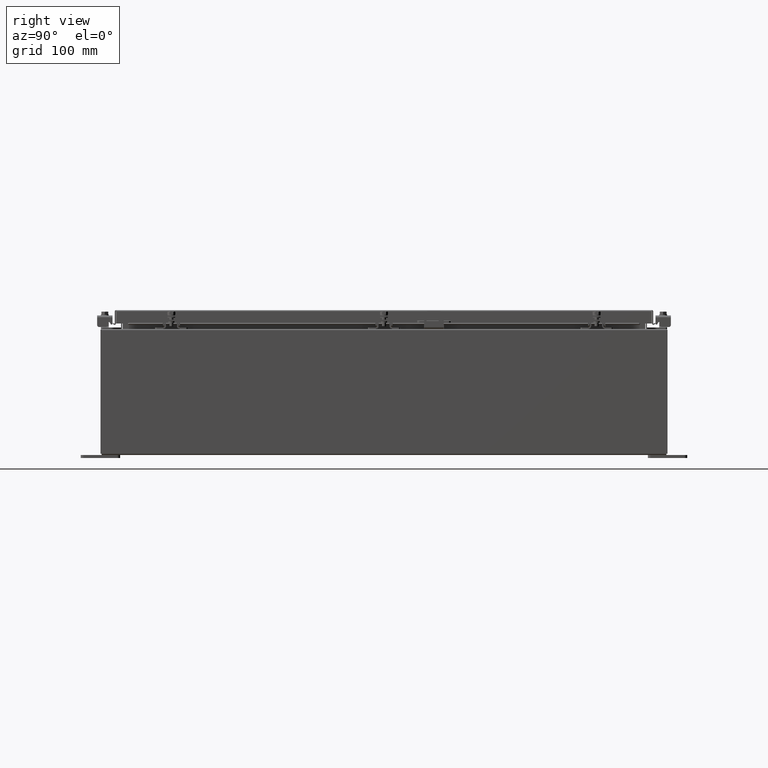
[diagram: clean part render]
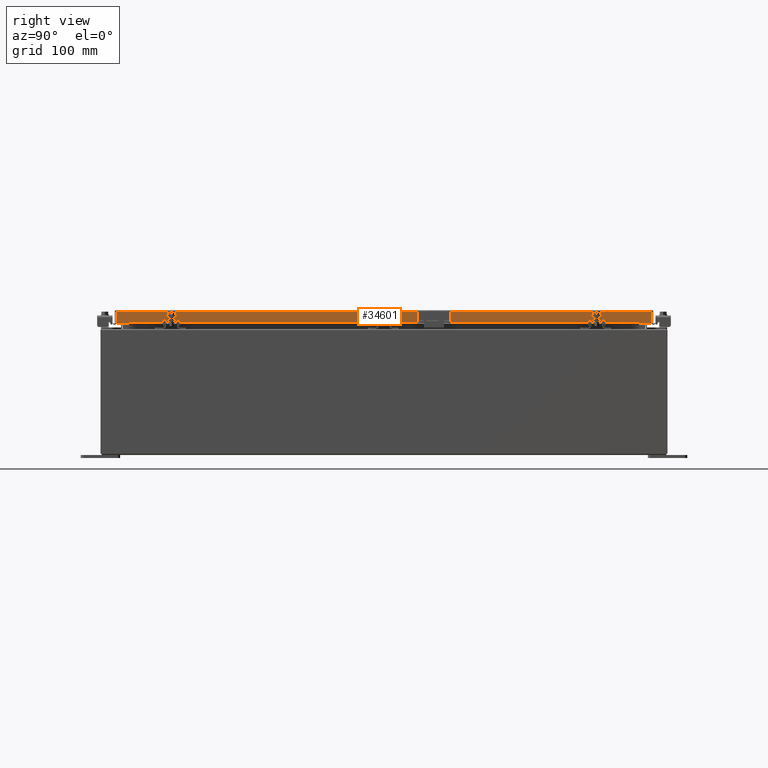
[diagram: same view with one face highlighted and labeled with its STEP entity id]
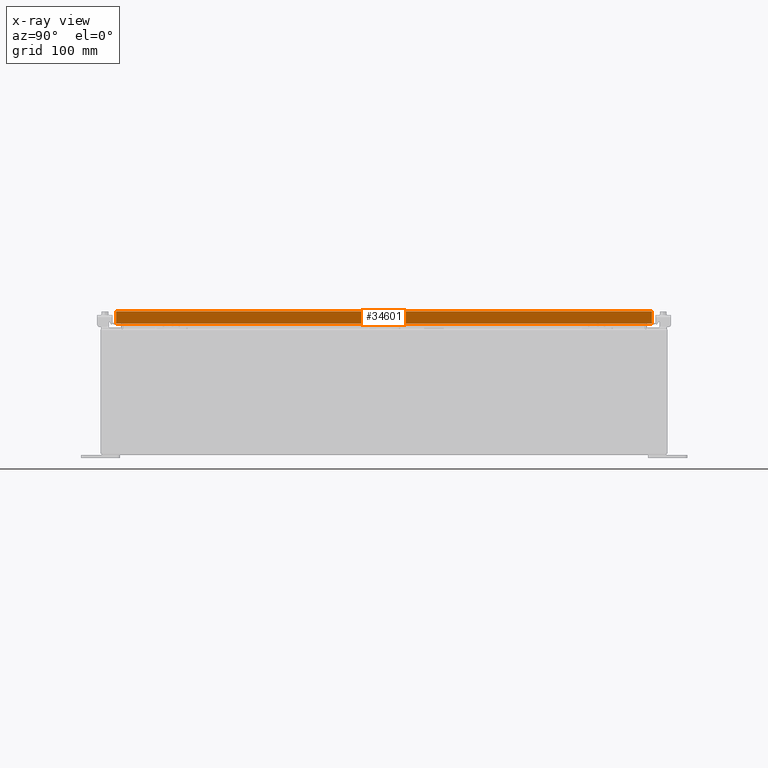
[diagram: x-ray of the same camera — body ghosted, the highlighted face saturated]
A machine part, right view. The second image highlights one B-rep face of the part: STEP entity #34601.
The next image is the same camera in x-ray: the body ghosted, the highlighted face saturated — about 0% of this face is hidden behind the body in this view.
In plain terms, the highlighted planar face has unit normal (1, 0, 0).
Its self-contained STEP definition (entity closure, byte-faithful):
#553 = DIRECTION ( 'NONE',  ( 2.818880942772360100E-015, 0.0000000000000000000, -1.000000000000000000 ) ) ;
#1302 = LINE ( 'NONE', #27142, #33855 ) ;
#2175 = CARTESIAN_POINT ( 'NONE',  ( 11.07799999999999800, 17.00515786437628000, -0.8499999999999996400 ) ) ;
#3017 = ORIENTED_EDGE ( 'NONE', *, *, #36706, .F. ) ;
#3088 = EDGE_LOOP ( 'NONE', ( #3017, #41963, #11924, #37912, #36174, #11191 ) ) ;
#3940 = EDGE_CURVE ( 'NONE', #24864, #25596, #1302, .T. ) ;
#6904 = PLANE ( 'NONE',  #12127 ) ;
#7496 = VECTOR ( 'NONE', #35919, 39.37007874015748100 ) ;
#9224 = VERTEX_POINT ( 'NONE', #9693 ) ;
#9693 = CARTESIAN_POINT ( 'NONE',  ( 11.07799999999998900, -16.25515786437626200, -0.8500000000000016400 ) ) ;
#9966 = CARTESIAN_POINT ( 'NONE',  ( 11.07799999999999800, -17.09399999999999800, -0.8499999999999996400 ) ) ;
#10571 = CARTESIAN_POINT ( 'NONE',  ( 11.07799999999999600, 0.0000000000000000000, -0.08770000000000007000 ) ) ;
#10998 = FACE_OUTER_BOUND ( 'NONE', #3088, .T. ) ;
#11191 = ORIENTED_EDGE ( 'NONE', *, *, #17916, .T. ) ;
#11574 = VERTEX_POINT ( 'NONE', #33624 ) ;
#11924 = ORIENTED_EDGE ( 'NONE', *, *, #16301, .F. ) ;
#12127 = AXIS2_PLACEMENT_3D ( 'NONE', #26419, #20048, #553 ) ;
#15161 = LINE ( 'NONE', #9966, #7496 ) ;
#15877 = DIRECTION ( 'NONE',  ( -2.818880942772360500E-015, -6.982962677686269100E-015, 1.000000000000000000 ) ) ;
#16087 = CARTESIAN_POINT ( 'NONE',  ( 11.07799999999999800, -17.00515786437626200, -0.8499999999999996400 ) ) ;
#16301 = EDGE_CURVE ( 'NONE', #33108, #9224, #35199, .T. ) ;
#17916 = EDGE_CURVE ( 'NONE', #25596, #11574, #41222, .T. ) ;
#18035 = CARTESIAN_POINT ( 'NONE',  ( 11.07799999999999800, -17.09399999999999800, -0.8499999999999996400 ) ) ;
#20048 = DIRECTION ( 'NONE',  ( 1.000000000000000000, 0.0000000000000000000, 2.818880942772360100E-015 ) ) ;
#21448 = DIRECTION ( 'NONE',  ( 0.0000000000000000000, -1.000000000000000000, 0.0000000000000000000 ) ) ;
#23647 = EDGE_CURVE ( 'NONE', #9224, #40629, #29258, .T. ) ;
#24134 = VECTOR ( 'NONE', #15877, 39.37007874015748100 ) ;
#24864 = VERTEX_POINT ( 'NONE', #2175 ) ;
#25596 = VERTEX_POINT ( 'NONE', #40839 ) ;
#26419 = CARTESIAN_POINT ( 'NONE',  ( 11.07799999999999600, 0.0000000000000000000, 3.148837674004377800E-014 ) ) ;
#26840 = DIRECTION ( 'NONE',  ( 0.0000000000000000000, -1.000000000000000000, 0.0000000000000000000 ) ) ;
#27142 = CARTESIAN_POINT ( 'NONE',  ( 11.07799999999999600, 17.00515786437627600, 1.502347594351464400E-013 ) ) ;
#27475 = VECTOR ( 'NONE', #26840, 39.37007874015748100 ) ;
#29258 = LINE ( 'NONE', #18035, #30313 ) ;
#30313 = VECTOR ( 'NONE', #40804, 39.37007874015748100 ) ;
#31494 = EDGE_CURVE ( 'NONE', #24864, #33108, #15161, .T. ) ;
#33108 = VERTEX_POINT ( 'NONE', #35787 ) ;
#33624 = CARTESIAN_POINT ( 'NONE',  ( 11.07799999999999600, -17.00515786437626500, -0.08770000000000007000 ) ) ;
#33768 = DIRECTION ( 'NONE',  ( -2.818880942772360500E-015, -6.982962677686269100E-015, 1.000000000000000000 ) ) ;
#33855 = VECTOR ( 'NONE', #33768, 39.37007874015748100 ) ;
#34601 = ADVANCED_FACE ( 'NONE', ( #10998 ), #6904, .T. ) ;
#35199 = LINE ( 'NONE', #40962, #41776 ) ;
#35787 = CARTESIAN_POINT ( 'NONE',  ( 11.07799999999998900, 16.25515786437628000, -0.8500000000000016400 ) ) ;
#35919 = DIRECTION ( 'NONE',  ( 0.0000000000000000000, -1.000000000000000000, 0.0000000000000000000 ) ) ;
#36174 = ORIENTED_EDGE ( 'NONE', *, *, #3940, .T. ) ;
#36706 = EDGE_CURVE ( 'NONE', #40629, #11574, #40440, .T. ) ;
#37912 = ORIENTED_EDGE ( 'NONE', *, *, #31494, .F. ) ;
#38632 = CARTESIAN_POINT ( 'NONE',  ( 11.07799999999999600, -17.00515786437626500, -0.07469999999999978000 ) ) ;
#40440 = LINE ( 'NONE', #38632, #24134 ) ;
#40629 = VERTEX_POINT ( 'NONE', #16087 ) ;
#40804 = DIRECTION ( 'NONE',  ( 0.0000000000000000000, -1.000000000000000000, 0.0000000000000000000 ) ) ;
#40839 = CARTESIAN_POINT ( 'NONE',  ( 11.07799999999999600, 17.00515786437627600, -0.08770000000000007000 ) ) ;
#40962 = CARTESIAN_POINT ( 'NONE',  ( 11.07799999999998900, 16.25515786437628300, -0.8500000000000016400 ) ) ;
#41222 = LINE ( 'NONE', #10571, #27475 ) ;
#41776 = VECTOR ( 'NONE', #21448, 39.37007874015748100 ) ;
#41963 = ORIENTED_EDGE ( 'NONE', *, *, #23647, .F. ) ;